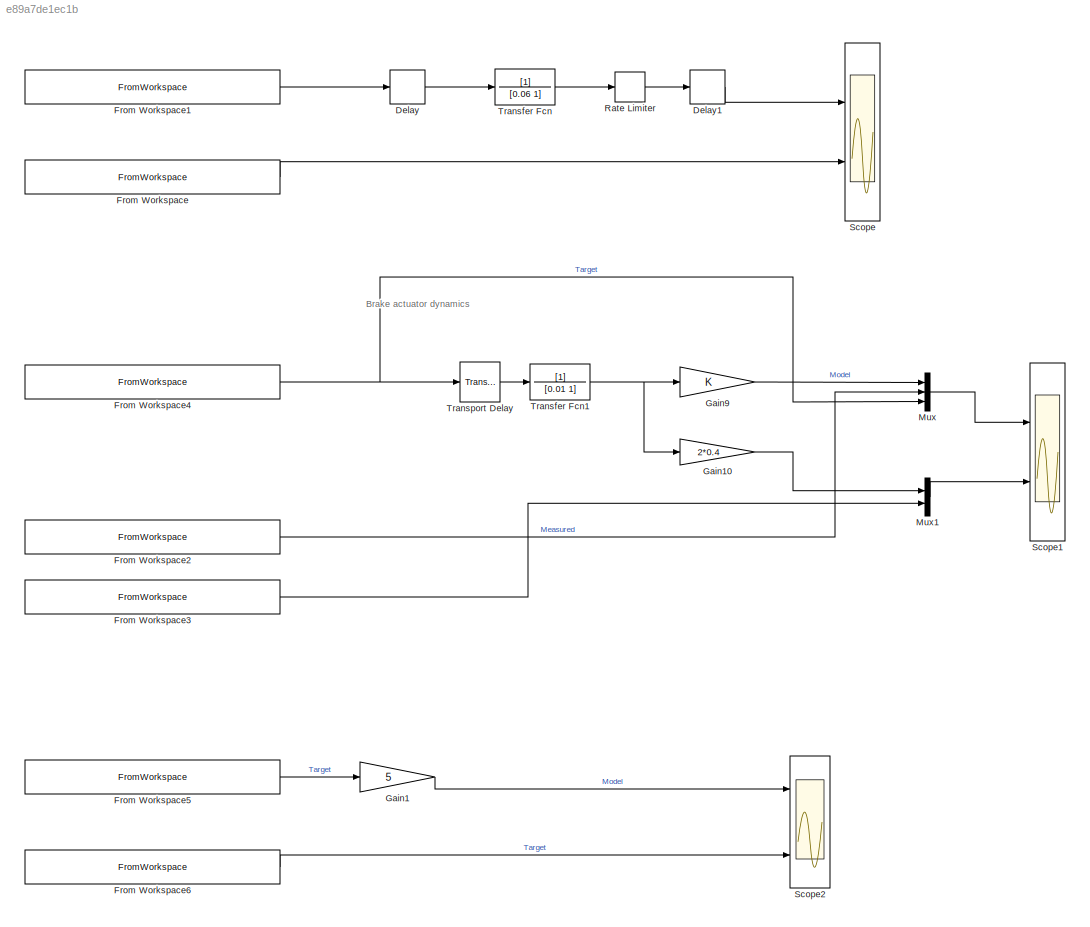
MODEL slx_e89a7de1ec1b
KIND model
CONFIG AbsTol = auto
CONFIG EnableMultiTasking = off
CONFIG FixedStep = 0.01
CONFIG MaxStep = auto
CONFIG MinStep = auto
CONFIG RelTol = 1e-3
CONFIG SampleTimeConstraint = Unconstrained
CONFIG Solver = ode4
CONFIG SolverName = ode4
CONFIG StartTime = 0.0
CONFIG StopTime = 1000
BLOCK [Delay] Delay
  DelayLength = 4
  InputPortMap = u0
  Ports = [1, 1]
BLOCK [Delay] Delay1
  DelayLength = 4
  InputPortMap = u0
  Ports = [1, 1]
BLOCK [FromWorkspace] From Workspace
  SampleTime = 0
  VariableName = debug.debug_VehicleSensorData_Delta_Wheel_rad
  ZeroCross = on
BLOCK [FromWorkspace] From Workspace1
  SampleTime = 0
  VariableName = debug.debug_mvdc_actuator_debug_RequestSteeringAngle_rad
  ZeroCross = on
BLOCK [FromWorkspace] From Workspace2
  SampleTime = 0
  VariableName = debug.debug_VehicleSensorData_p_BrakeF_bar
  ZeroCross = on
BLOCK [FromWorkspace] From Workspace3
  SampleTime = 0
  VariableName = debug.debug_VehicleSensorData_p_BrakeR_bar
  ZeroCross = on
BLOCK [FromWorkspace] From Workspace4
  SampleTime = 0
  VariableName = debug.debug_VehicleSensorData_Brake_Manual_bar
  ZeroCross = on
BLOCK [FromWorkspace] From Workspace5
  SampleTime = 0
  VariableName = debug.debug_mvdc_actuator_debug_p_throttle_pos
  ZeroCross = on
BLOCK [FromWorkspace] From Workspace6
  SampleTime = 0
  VariableName = debug.debug_mvdc_state_estimation_debug_StateEstimate_ax_mps2
  ZeroCross = on
BLOCK [Gain] Gain1
  Gain = 5
  OutDataTypeStr = Inherit: Inherit via internal rule
  ParamDataTypeStr = Inherit: Inherit via internal rule
  SaturateOnIntegerOverflow = off
BLOCK [Gain] Gain10
  Gain = 2*0.4
  OutDataTypeStr = Inherit: Inherit via internal rule
  ParamDataTypeStr = Inherit: Inherit via internal rule
  SaturateOnIntegerOverflow = off
BLOCK [Gain] Gain9
  OutDataTypeStr = Inherit: Inherit via internal rule
  ParamDataTypeStr = Inherit: Inherit via internal rule
  SaturateOnIntegerOverflow = off
BLOCK [Mux] Mux
  DisplayOption = bar
  Inputs = 3
  Ports = [3, 1]
BLOCK [Mux] Mux1
  DisplayOption = bar
  Inputs = 2
  Ports = [2, 1]
BLOCK [RateLimiter] Rate Limiter
  FallingSlewLimit = -6.28/19.5
  RisingSlewLimit = 6.28/19.5
  SampleTimeMode = inherited
BLOCK [Scope] Scope
  Floating = off
  NumInputPorts = 2
  Ports = [2]
  ScopeSpecificationString = Simulink.scopes.TimeScopeBlockCfg('CurrentConfiguration', extmgr.ConfigurationSet(extmgr.Configuration('Core','General UI',true),extmgr.Configuration('Core','Source UI',true),extmgr.Configuration('Sources','WiredSimulink',true),extmgr.Configuration('Visuals','Time Domain',true,'SerializedDisplays',{struct('MinYLimReal','0.00531','MaxYLimReal','0.05247','YLabelReal','','MinYLimMag','0.00531','MaxYL...<+1410ch>
BLOCK [Scope] Scope1
  Floating = off
  NumInputPorts = 2
  Ports = [2]
  ScopeSpecificationString = Simulink.scopes.TimeScopeBlockCfg('CurrentConfiguration', extmgr.ConfigurationSet(extmgr.Configuration('Core','General UI',true),extmgr.Configuration('Core','Source UI',true),extmgr.Configuration('Sources','WiredSimulink',true,'DataLoggingVariableName','ScopeData1'),extmgr.Configuration('Visuals','Time Domain',true,'SerializedDisplays',{struct('MinYLimReal','-5.34789','MaxYLimReal','12.94116','YLa...<+2141ch>
BLOCK [Scope] Scope2
  Floating = off
  NumInputPorts = 3
  Ports = [3]
  ScopeSpecificationString = Simulink.scopes.TimeScopeBlockCfg('CurrentConfiguration', extmgr.ConfigurationSet(extmgr.Configuration('Core','General UI',true),extmgr.Configuration('Core','Source UI',true),extmgr.Configuration('Sources','WiredSimulink',true,'DataLoggingVariableName','ScopeData1'),extmgr.Configuration('Visuals','Time Domain',true,'SerializedDisplays',{struct('MinYLimReal','-6.23536','MaxYLimReal','6.75819','YLab...<+1431ch>
BLOCK [TransferFcn] Transfer Fcn
  Denominator = [0.06 1]
BLOCK [TransferFcn] Transfer Fcn1
  Denominator = [0.01 1]
BLOCK [TransportDelay] Transport Delay
  DelayTime = 0.02
  Ports = [1, 1]
ANNOTATION (root): Brake actuator dynamics
LINE Delay1:1 -> Scope:1
LINE Delay:1 -> Transfer Fcn:1
LINE From Workspace1:1 -> Delay:1
LINE From Workspace2:1 -> Mux:2
LINE From Workspace3:1 -> Mux1:2
NET From Workspace4:1 -> Mux:3, Transport Delay:1
LINE From Workspace5:1 -> Gain1:1
LINE From Workspace6:1 -> Scope2:3
LINE From Workspace:1 -> Scope:2
LINE Gain10:1 -> Mux1:1
LINE Gain1:1 -> Scope2:1
LINE Gain9:1 -> Mux:1
LINE Mux1:1 -> Scope1:2
LINE Mux:1 -> Scope1:1
LINE Rate Limiter:1 -> Delay1:1
NET Transfer Fcn1:1 -> Gain10:1, Gain9:1
LINE Transfer Fcn:1 -> Rate Limiter:1
LINE Transport Delay:1 -> Transfer Fcn1:1
note: NET lines group one-source signal fan-out (src -> all destinations, sorted); 1:1 wires keep LINE
